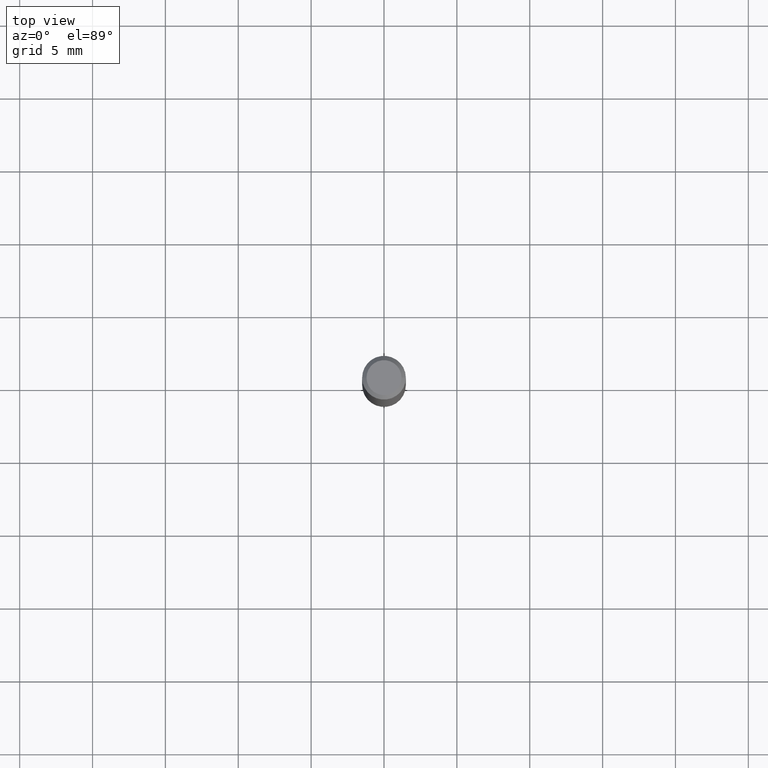
[diagram: clean part render]
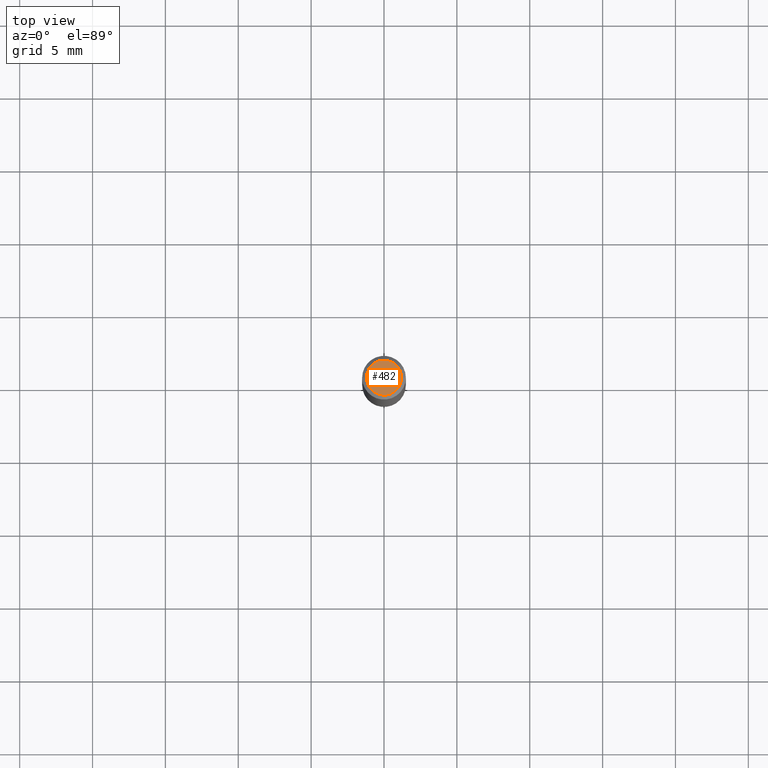
[diagram: same view with one face highlighted and labeled with its STEP entity id]
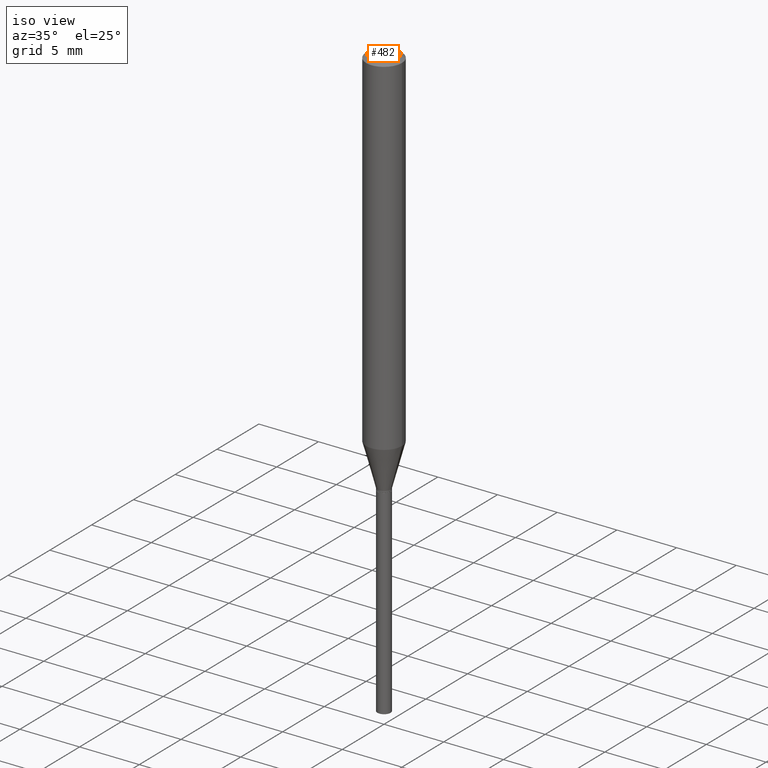
[diagram: same view with one face highlighted and labeled with its STEP entity id]
A machine part, top view. The second image highlights one B-rep face of the part: STEP entity #482.
A second angle (iso view) of the same face is appended — the face is thin or edge-on in the first view.
In plain terms, the highlighted planar face has unit normal (0, -0, -1).
Its self-contained STEP definition (entity closure, byte-faithful):
#2 = ORIENTED_EDGE ( 'NONE', *, *, #43, .T. ) ;
#7 = CARTESIAN_POINT ( 'NONE',  ( 4.132873053354867254E-48, -5.900647395337818946E-34, -1.690012582823346072E-19 ) ) ;
#18 = DIRECTION ( 'NONE',  ( -2.445468806185136597E-29, 3.491481338843145583E-15, 1.000000000000000000 ) ) ;
#21 = DIRECTION ( 'NONE',  ( 1.000000000000000000, -6.982962677686266711E-15, 4.876185090822587894E-29 ) ) ;
#32 = CIRCLE ( 'NONE', #354, 0.04724000000000000421 ) ;
#36 = VERTEX_POINT ( 'NONE', #164 ) ;
#43 = EDGE_CURVE ( 'NONE', #64, #36, #32, .T. ) ;
#64 = VERTEX_POINT ( 'NONE', #471 ) ;
#116 = EDGE_LOOP ( 'NONE', ( #156, #2 ) ) ;
#127 = PLANE ( 'NONE',  #400 ) ;
#141 = EDGE_CURVE ( 'NONE', #36, #64, #372, .T. ) ;
#156 = ORIENTED_EDGE ( 'NONE', *, *, #141, .T. ) ;
#164 = CARTESIAN_POINT ( 'NONE',  ( -0.04724000000000000421, 3.504923541997677355E-16, -3.380025165670481712E-19 ) ) ;
#239 = DIRECTION ( 'NONE',  ( 1.000000000000000000, -6.982962677686266711E-15, 4.876185090822587894E-29 ) ) ;
#240 = AXIS2_PLACEMENT_3D ( 'NONE', #327, #18, #21 ) ;
#312 = DIRECTION ( 'NONE',  ( -1.000000000000000000, 6.982962677686265922E-15, -4.876176775795935793E-29 ) ) ;
#318 = FACE_OUTER_BOUND ( 'NONE', #116, .T. ) ;
#320 = CARTESIAN_POINT ( 'NONE',  ( 8.265746106709734507E-48, -1.180129479067563789E-33, -3.380025165646692144E-19 ) ) ;
#327 = CARTESIAN_POINT ( 'NONE',  ( 8.265746106709734507E-48, -1.180129479067563789E-33, -3.380025165646692144E-19 ) ) ;
#354 = AXIS2_PLACEMENT_3D ( 'NONE', #320, #355, #239 ) ;
#355 = DIRECTION ( 'NONE',  ( -2.445468806185136597E-29, 3.491481338843145583E-15, 1.000000000000000000 ) ) ;
#372 = CIRCLE ( 'NONE', #240, 0.04724000000000000421 ) ;
#392 = DIRECTION ( 'NONE',  ( 2.438088387897960049E-29, -3.491481338843145188E-15, -1.000000000000000000 ) ) ;
#400 = AXIS2_PLACEMENT_3D ( 'NONE', #7, #392, #312 ) ;
#471 = CARTESIAN_POINT ( 'NONE',  ( 0.04724000000000000421, -3.852183633974369838E-16, -3.380025165621689721E-19 ) ) ;
#482 = ADVANCED_FACE ( 'NONE', ( #318 ), #127, .F. ) ;